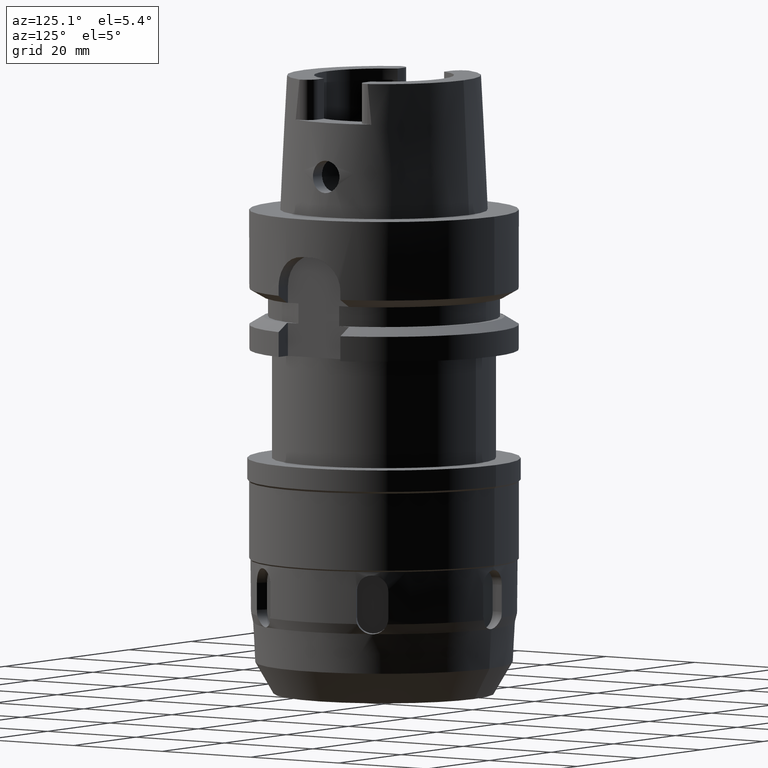
[diagram: clean part render]
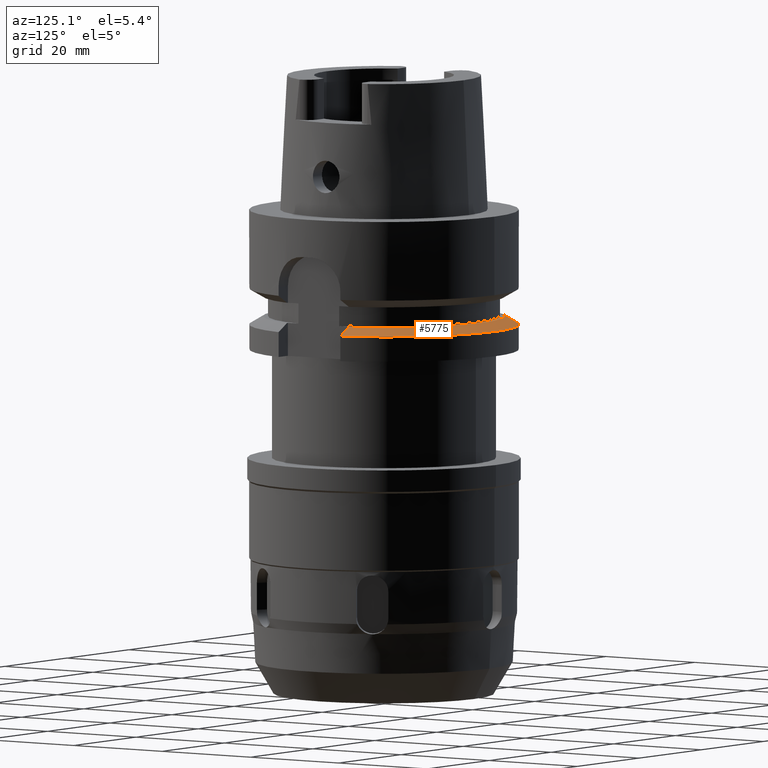
[diagram: same view with one face highlighted and labeled with its STEP entity id]
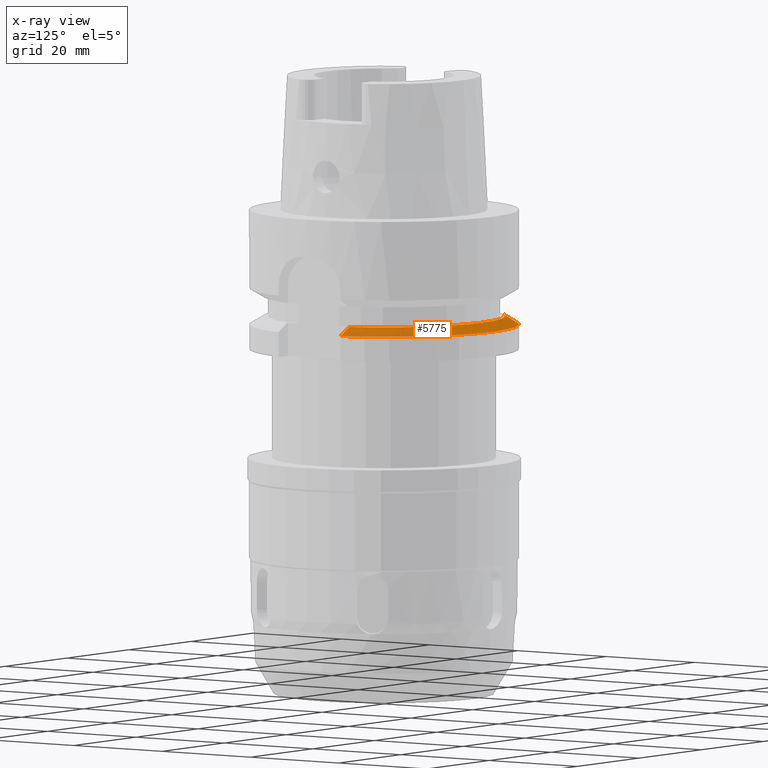
[diagram: x-ray of the same camera — body ghosted, the highlighted face saturated]
A machine part, auxiliary view. The second image highlights one B-rep face of the part: STEP entity #5775.
The next image is the same camera in x-ray: the body ghosted, the highlighted face saturated — about 0% of this face is hidden behind the body in this view.
In plain terms, the highlighted conical surface has half-angle 60 deg.
Its self-contained STEP definition (entity closure, byte-faithful):
#2440=CARTESIAN_POINT('',(2.127562137386E1,7.000000354990E0,-1.9875E1));
#2441=CARTESIAN_POINT('',(2.157872870068E1,7.000000354990E0,-2.004123281545E1));
#2442=CARTESIAN_POINT('',(2.218461910577E1,6.999999979239E0,-2.037425456199E1));
#2443=CARTESIAN_POINT('',(2.309276769669E1,6.999999540179E0,-2.087505267756E1));
#2444=CARTESIAN_POINT('',(2.369763807881E1,7.000001086756E0,-2.120992221038E1));
#2445=CARTESIAN_POINT('',(2.399999968303E1,7.000001086756E0,-2.137750801518E1));
#2659=CARTESIAN_POINT('',(0.E0,0.E0,-1.9875E1));
#2660=DIRECTION('',(0.E0,0.E0,-1.E0));
#2661=DIRECTION('',(-6.920385790157E-1,7.218605164115E-1,0.E0));
#2662=AXIS2_PLACEMENT_3D('',#2659,#2660,#2661);
#2667=CARTESIAN_POINT('',(0.E0,0.E0,-1.9875E1));
#2668=DIRECTION('',(0.E0,0.E0,-1.E0));
#2669=DIRECTION('',(0.E0,1.E0,0.E0));
#2670=AXIS2_PLACEMENT_3D('',#2667,#2668,#2669);
#2720=CARTESIAN_POINT('',(-1.549998696071E1,1.616805732866E1,-1.9875E1));
#2721=CARTESIAN_POINT('',(-1.549998696071E1,1.654015613063E1,
-2.003007862426E1));
#2722=CARTESIAN_POINT('',(-1.550000794862E1,1.729171952510E1,
-2.034856809687E1));
#2723=CARTESIAN_POINT('',(-1.549999173879E1,1.844074549736E1,
-2.084959212498E1));
#2724=CARTESIAN_POINT('',(-1.550001397709E1,1.922111117178E1,
-2.119910730272E1));
#2725=CARTESIAN_POINT('',(-1.550001397709E1,1.961503420108E1,
-2.137755022037E1));
#2730=CARTESIAN_POINT('',(0.E0,0.E0,-2.137749907476E1));
#2731=DIRECTION('',(0.E0,0.E0,-1.E0));
#2732=DIRECTION('',(-6.200000000001E-1,7.846018098373E-1,0.E0));
#2733=AXIS2_PLACEMENT_3D('',#2730,#2731,#2732);
#2738=CARTESIAN_POINT('',(0.E0,0.E0,-2.137749907476E1));
#2739=DIRECTION('',(0.E0,0.E0,-1.E0));
#2740=DIRECTION('',(0.E0,1.E0,0.E0));
#2741=AXIS2_PLACEMENT_3D('',#2738,#2739,#2740);
#3750=CARTESIAN_POINT('',(-1.550001397709E1,1.961503420108E1,
-2.137755022037E1));
#3751=VERTEX_POINT('',#3750);
#3752=VERTEX_POINT('',#2720);
#3770=CARTESIAN_POINT('',(2.399999968303E1,7.000001086756E0,-2.137750801518E1));
#3771=VERTEX_POINT('',#3770);
#3772=CARTESIAN_POINT('',(0.E0,2.5E1,-2.137749907476E1));
#3773=VERTEX_POINT('',#3772);
#3818=VERTEX_POINT('',#2440);
#3819=CARTESIAN_POINT('',(0.E0,2.239759526419E1,-1.9875E1));
#3820=VERTEX_POINT('',#3819);
#5762=CARTESIAN_POINT('',(0.E0,0.E0,-2.062624953738E1));
#5763=DIRECTION('',(0.E0,0.E0,-1.E0));
#5764=DIRECTION('',(0.E0,-1.E0,0.E0));
#5765=AXIS2_PLACEMENT_3D('',#5762,#5763,#5764);
#5766=CONICAL_SURFACE('',#5765,2.369879763210E1,6.E1);
#5767=ORIENTED_EDGE('',*,*,#5536,.T.);
#5768=ORIENTED_EDGE('',*,*,#5557,.T.);
#5769=ORIENTED_EDGE('',*,*,#5555,.T.);
#5770=ORIENTED_EDGE('',*,*,#5572,.F.);
#5771=ORIENTED_EDGE('',*,*,#5746,.F.);
#5772=ORIENTED_EDGE('',*,*,#5744,.F.);
#5773=EDGE_LOOP('',(#5767,#5768,#5769,#5770,#5771,#5772));
#5774=FACE_OUTER_BOUND('',#5773,.F.);
#2446=B_SPLINE_CURVE_WITH_KNOTS('',3,(#2440,#2441,#2442,#2443,#2444,#2445),
.UNSPECIFIED.,.F.,.F.,(4,1,1,4),(0.E0,3.333333333333E-1,6.666666666667E-1,1.E0),
.UNSPECIFIED.);
#2663=CIRCLE('',#2662,2.239759526419E1);
#2671=CIRCLE('',#2670,2.239759526419E1);
#2726=B_SPLINE_CURVE_WITH_KNOTS('',3,(#2720,#2721,#2722,#2723,#2724,#2725),
.UNSPECIFIED.,.F.,.F.,(4,1,1,4),(0.E0,3.333333333333E-1,6.666666666667E-1,1.E0),
.UNSPECIFIED.);
#2734=CIRCLE('',#2733,2.5E1);
#2742=CIRCLE('',#2741,2.5E1);
#5536=EDGE_CURVE('',#3752,#3751,#2726,.T.);
#5555=EDGE_CURVE('',#3773,#3771,#2742,.T.);
#5557=EDGE_CURVE('',#3751,#3773,#2734,.T.);
#5572=EDGE_CURVE('',#3818,#3771,#2446,.T.);
#5744=EDGE_CURVE('',#3752,#3820,#2663,.T.);
#5746=EDGE_CURVE('',#3820,#3818,#2671,.T.);
#5775=ADVANCED_FACE('',(#5774),#5766,.T.);